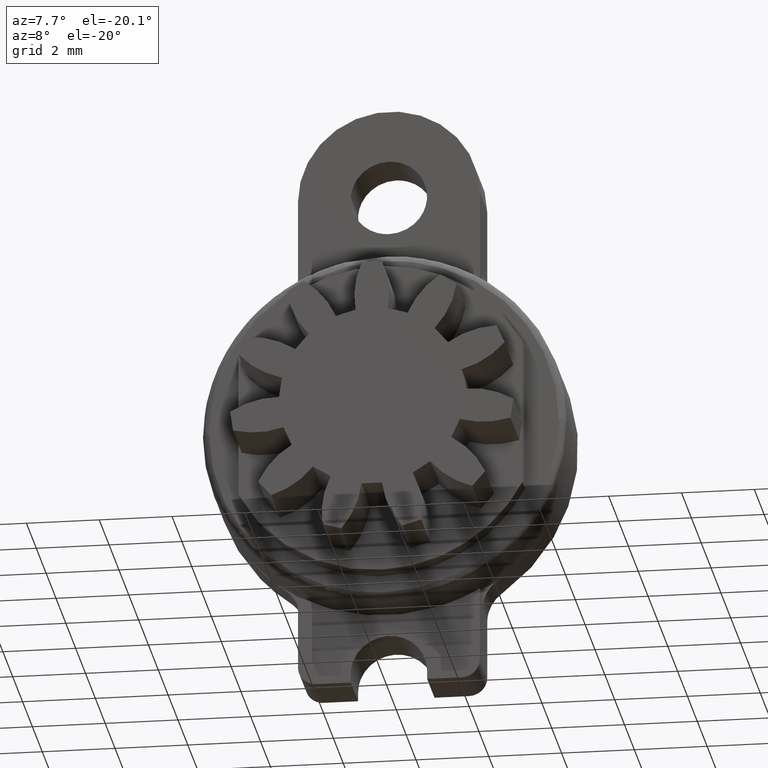
[diagram: clean part render]
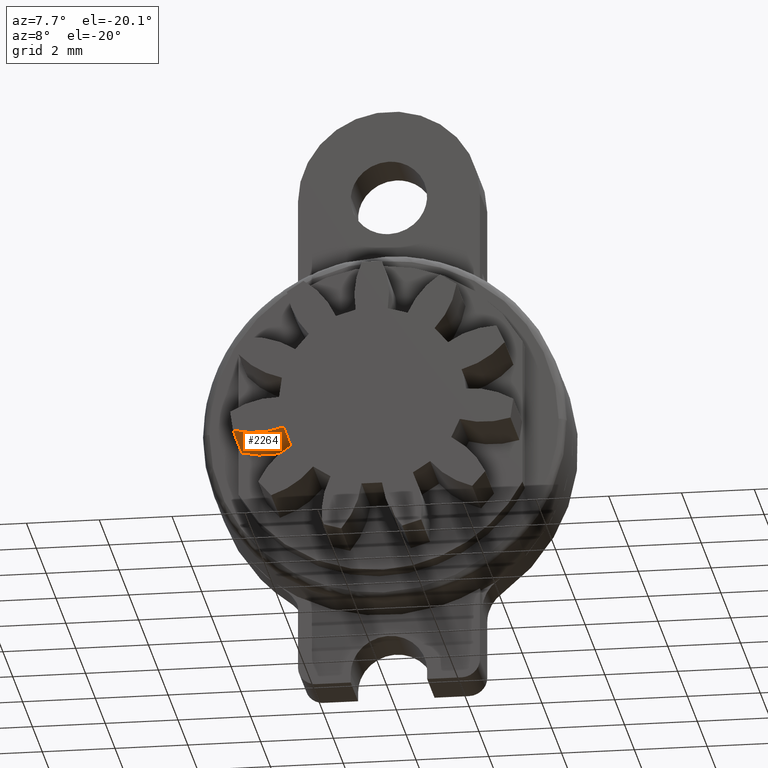
[diagram: same view with one face highlighted and labeled with its STEP entity id]
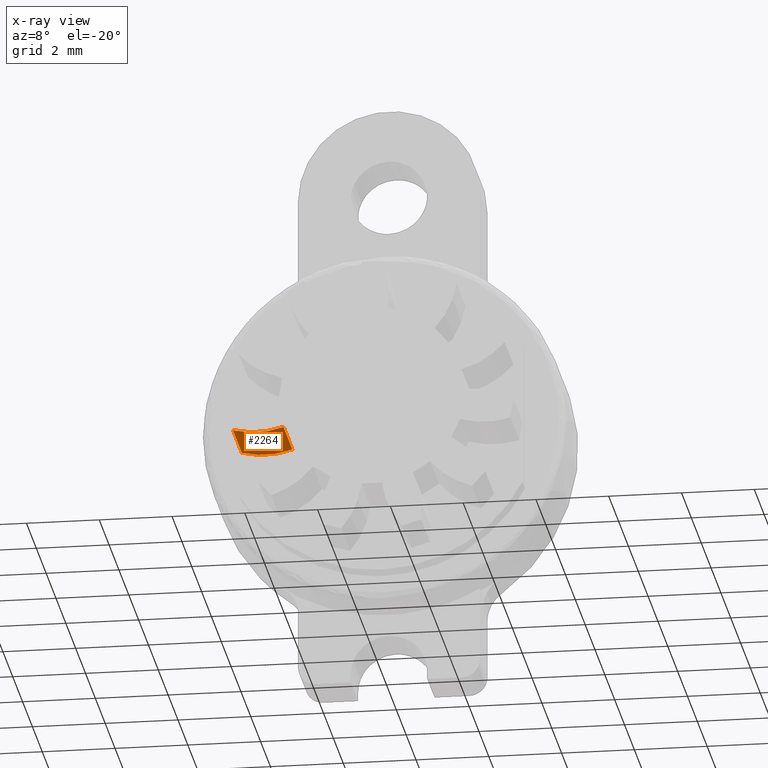
[diagram: x-ray of the same camera — body ghosted, the highlighted face saturated]
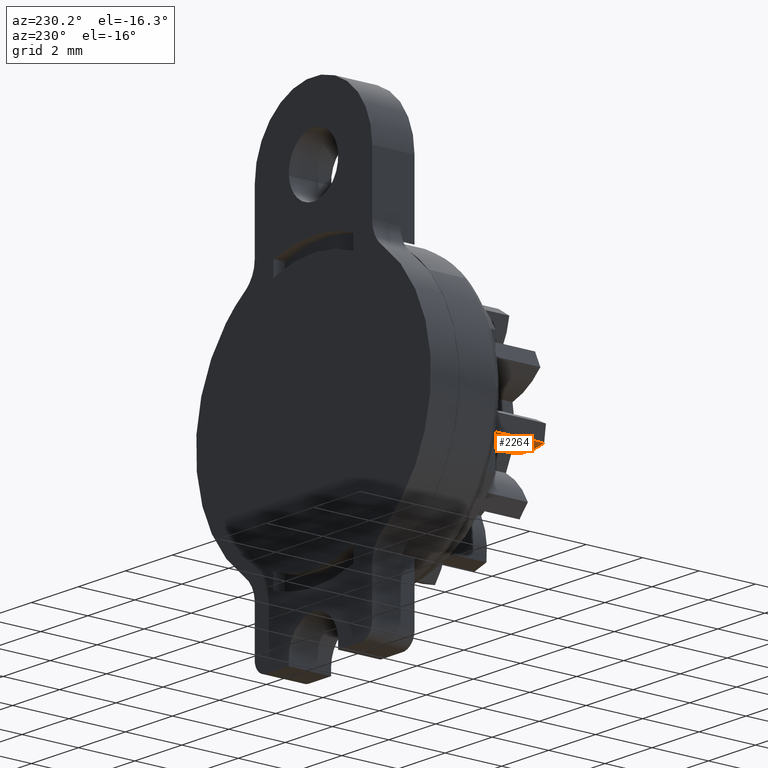
[diagram: same view with one face highlighted and labeled with its STEP entity id]
A machine part, auxiliary view. The second image highlights one B-rep face of the part: STEP entity #2264.
The next image is the same camera in x-ray: the body ghosted, the highlighted face saturated — about 0% of this face is hidden behind the body in this view.
A second angle (auxiliary view) of the same face is appended — the face is thin or edge-on in the first view.
In plain terms, the highlighted face is a freeform B-spline surface patch.
Its self-contained STEP definition (entity closure, byte-faithful):
#563=CARTESIAN_POINT('',(-3.812183331912850,-5.0,-0.822957012173662));
#564=VERTEX_POINT('',#563);
#578=CARTESIAN_POINT('',(-2.422681351375640,-5.0,-0.795685283071563));
#579=VERTEX_POINT('',#578);
#580=CARTESIAN_POINT('',(-3.812183331912851,-5.0,-0.822957012173661));
#581=CARTESIAN_POINT('',(-3.113248492332056,-5.000000000000002,-1.022489402697042));
#582=CARTESIAN_POINT('',(-2.422681351375641,-5.0,-0.795685283071563));
#590=(BOUNDED_CURVE()B_SPLINE_CURVE(2,(#580,#581,#582),.UNSPECIFIED.,.F.,.U.)CURVE()GEOMETRIC_REPRESENTATION_ITEM()QUASI_UNIFORM_CURVE()RATIONAL_B_SPLINE_CURVE((1.0,0.956011273868735,1.0))REPRESENTATION_ITEM(''));
#591=EDGE_CURVE('',#564,#579,#590,.T.);
#2201=CARTESIAN_POINT('',(-2.422681351375640,-3.200000000000090,-0.795685283071563));
#2202=VERTEX_POINT('',#2201);
#2218=CARTESIAN_POINT('',(-2.422681351375640,-5.0,-0.795685283071563));
#2219=CARTESIAN_POINT('',(-2.422681351375640,-3.200000000000090,-0.795685283071563));
#2220=QUASI_UNIFORM_CURVE('',1,(#2218,#2219),.UNSPECIFIED.,.F.,.U.);
#2221=EDGE_CURVE('',#579,#2202,#2220,.T.);
#2226=CARTESIAN_POINT('',(-3.871590149273357,-5.044999999999998,-0.805153300870131));
#2227=CARTESIAN_POINT('',(-3.871590149273357,-3.153875000000092,-0.805153300870131));
#2228=CARTESIAN_POINT('',(-3.108896144054906,-5.044999999999998,-1.044649921357692));
#2229=CARTESIAN_POINT('',(-3.108896144054906,-3.153875000000092,-1.044649921357692));
#2230=CARTESIAN_POINT('',(-2.357034330338423,-5.044999999999999,-0.773053548230062));
#2231=CARTESIAN_POINT('',(-2.357034330338423,-3.153875000000094,-0.773053548230062));
#2239=(BOUNDED_SURFACE()B_SPLINE_SURFACE(1,2,((#2226,#2228,#2230),(#2227,#2229,#2231)),.UNSPECIFIED.,.F.,.F.,.U.)B_SPLINE_SURFACE_WITH_KNOTS((2,2),(3,3),(0.0,1.0),(0.0,0.955520018516667),.UNSPECIFIED.)GEOMETRIC_REPRESENTATION_ITEM()RATIONAL_B_SPLINE_SURFACE(((1.0,0.945192796506310,0.995124353206895),(1.0,0.945192796506310,0.995124353206895)))REPRESENTATION_ITEM('')SURFACE());
#2240=CARTESIAN_POINT('',(-3.812183331912850,-3.200000000000090,-0.822957012173662));
#2241=VERTEX_POINT('',#2240);
#2242=CARTESIAN_POINT('',(-3.812183331912851,-3.200000000000090,-0.822957012173661));
#2243=CARTESIAN_POINT('',(-3.113248492332056,-3.200000000000091,-1.022489402697042));
#2244=CARTESIAN_POINT('',(-2.422681351375641,-3.200000000000090,-0.795685283071563));
#2252=(BOUNDED_CURVE()B_SPLINE_CURVE(2,(#2242,#2243,#2244),.UNSPECIFIED.,.F.,.U.)CURVE()GEOMETRIC_REPRESENTATION_ITEM()QUASI_UNIFORM_CURVE()RATIONAL_B_SPLINE_CURVE((1.0,0.956011273868735,1.0))REPRESENTATION_ITEM(''));
#2253=EDGE_CURVE('',#2241,#2202,#2252,.T.);
#2254=ORIENTED_EDGE('',*,*,#2253,.T.);
#2255=ORIENTED_EDGE('',*,*,#2221,.F.);
#2256=ORIENTED_EDGE('',*,*,#591,.F.);
#2257=CARTESIAN_POINT('',(-3.812183331912850,-5.0,-0.822957012173662));
#2258=CARTESIAN_POINT('',(-3.812183331912850,-3.200000000000090,-0.822957012173662));
#2259=QUASI_UNIFORM_CURVE('',1,(#2257,#2258),.UNSPECIFIED.,.F.,.U.);
#2260=EDGE_CURVE('',#564,#2241,#2259,.T.);
#2261=ORIENTED_EDGE('',*,*,#2260,.T.);
#2262=EDGE_LOOP('',(#2254,#2255,#2256,#2261));
#2263=FACE_OUTER_BOUND('',#2262,.T.);
#2264=ADVANCED_FACE('',(#2263),#2239,.T.);